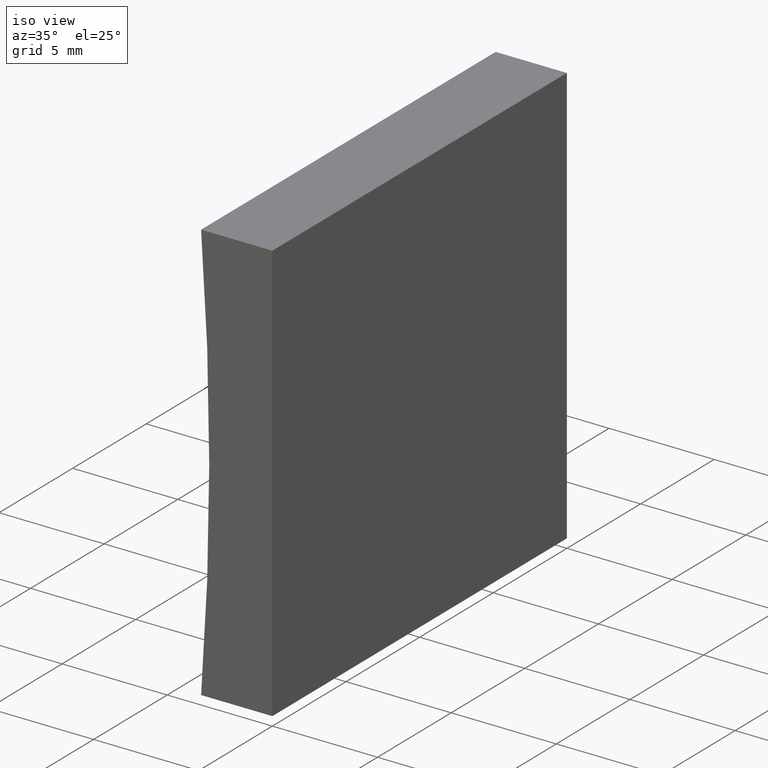
[diagram: clean part render]
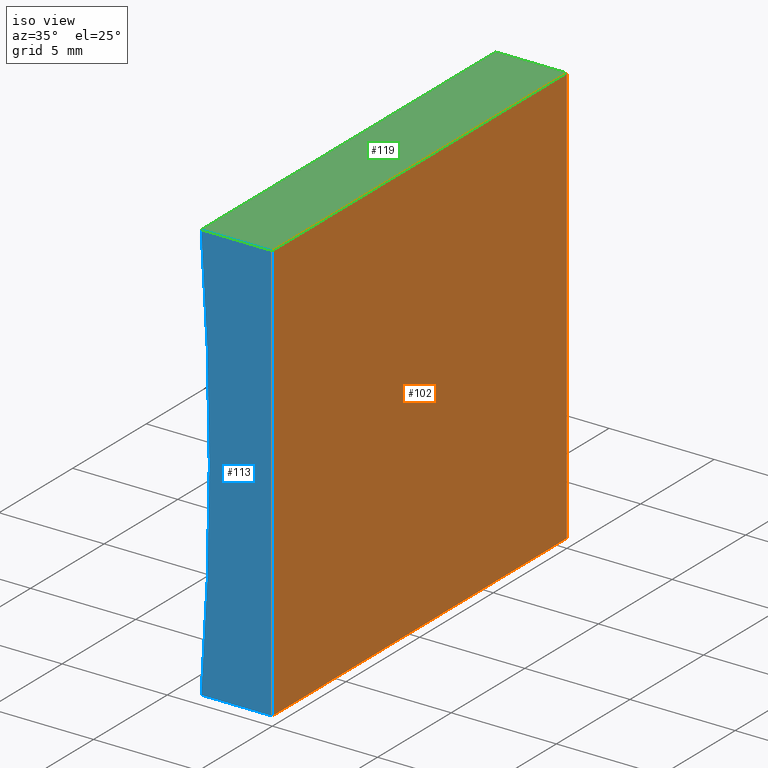
[diagram: same view with three faces highlighted in distinct colors, each labeled with its STEP entity id]
A machine part, iso view with three faces highlighted in distinct colors.
Their STEP definitions:

[orange] entity #102 — the highlighted planar face has unit normal (-1, 0, 0).
#18 = LINE ( 'NONE', #59, #193 ) ;
#23 = LINE ( 'NONE', #48, #42 ) ;
#26 = DIRECTION ( 'NONE',  ( -0.0000000000000000000, -1.000000000000000000, -0.0000000000000000000 ) ) ;
#29 = VERTEX_POINT ( 'NONE', #78 ) ;
#34 = PLANE ( 'NONE',  #106 ) ;
#41 = DIRECTION ( 'NONE',  ( -1.000000000000000000, 0.0000000000000000000, 6.123233995736766000E-017 ) ) ;
#42 = VECTOR ( 'NONE', #180, 1000.000000000000000 ) ;
#48 = CARTESIAN_POINT ( 'NONE',  ( 0.0000000000000000000, 20.00000000000000000, 0.0000000000000000000 ) ) ;
#50 = DIRECTION ( 'NONE',  ( -6.123233995736766000E-017, -0.0000000000000000000, -1.000000000000000000 ) ) ;
#57 = EDGE_CURVE ( 'NONE', #29, #194, #18, .T. ) ;
#59 = CARTESIAN_POINT ( 'NONE',  ( 0.0000000000000000000, 0.0000000000000000000, 0.0000000000000000000 ) ) ;
#65 = CARTESIAN_POINT ( 'NONE',  ( 1.224646799147353300E-015, 20.00000000000000000, 20.00000000000000000 ) ) ;
#66 = ORIENTED_EDGE ( 'NONE', *, *, #57, .T. ) ;
#68 = EDGE_CURVE ( 'NONE', #124, #117, #130, .T. ) ;
#74 = ORIENTED_EDGE ( 'NONE', *, *, #68, .F. ) ;
#75 = VECTOR ( 'NONE', #50, 1000.000000000000000 ) ;
#76 = CARTESIAN_POINT ( 'NONE',  ( 0.0000000000000000000, 20.00000000000000000, 0.0000000000000000000 ) ) ;
#77 = CARTESIAN_POINT ( 'NONE',  ( 0.0000000000000000000, 20.00000000000000000, 0.0000000000000000000 ) ) ;
#78 = CARTESIAN_POINT ( 'NONE',  ( 1.224646799147353300E-015, 0.0000000000000000000, 20.00000000000000000 ) ) ;
#98 = DIRECTION ( 'NONE',  ( -6.123233995736766000E-017, -0.0000000000000000000, -1.000000000000000000 ) ) ;
#102 = ADVANCED_FACE ( 'NONE', ( #138 ), #34, .F. ) ;
#103 = LINE ( 'NONE', #65, #178 ) ;
#106 = AXIS2_PLACEMENT_3D ( 'NONE', #76, #41, #129 ) ;
#117 = VERTEX_POINT ( 'NONE', #171 ) ;
#124 = VERTEX_POINT ( 'NONE', #149 ) ;
#129 = DIRECTION ( 'NONE',  ( 6.123233995736766000E-017, 0.0000000000000000000, 1.000000000000000000 ) ) ;
#130 = LINE ( 'NONE', #77, #75 ) ;
#131 = ORIENTED_EDGE ( 'NONE', *, *, #164, .F. ) ;
#138 = FACE_OUTER_BOUND ( 'NONE', #143, .T. ) ;
#143 = EDGE_LOOP ( 'NONE', ( #66, #131, #74, #177 ) ) ;
#149 = CARTESIAN_POINT ( 'NONE',  ( 1.224646799147353300E-015, 20.00000000000000000, 20.00000000000000000 ) ) ;
#154 = EDGE_CURVE ( 'NONE', #124, #29, #103, .T. ) ;
#164 = EDGE_CURVE ( 'NONE', #117, #194, #23, .T. ) ;
#169 = CARTESIAN_POINT ( 'NONE',  ( 0.0000000000000000000, 0.0000000000000000000, 0.0000000000000000000 ) ) ;
#171 = CARTESIAN_POINT ( 'NONE',  ( 0.0000000000000000000, 20.00000000000000000, 0.0000000000000000000 ) ) ;
#177 = ORIENTED_EDGE ( 'NONE', *, *, #154, .T. ) ;
#178 = VECTOR ( 'NONE', #26, 1000.000000000000000 ) ;
#180 = DIRECTION ( 'NONE',  ( -0.0000000000000000000, -1.000000000000000000, -0.0000000000000000000 ) ) ;
#193 = VECTOR ( 'NONE', #98, 1000.000000000000000 ) ;
#194 = VERTEX_POINT ( 'NONE', #169 ) ;

[blue] entity #113 — the highlighted planar face has unit normal (0, 1, 0).
#3 = CARTESIAN_POINT ( 'NONE',  ( 1.224646799147353300E-015, 0.0000000000000000000, 20.00000000000000000 ) ) ;
#4 = VECTOR ( 'NONE', #200, 1000.000000000000000 ) ;
#6 = AXIS2_PLACEMENT_3D ( 'NONE', #155, #92, #27 ) ;
#18 = LINE ( 'NONE', #59, #193 ) ;
#27 = DIRECTION ( 'NONE',  ( 0.0000000000000000000, 0.0000000000000000000, 1.000000000000000000 ) ) ;
#29 = VERTEX_POINT ( 'NONE', #78 ) ;
#32 = DIRECTION ( 'NONE',  ( 0.0000000000000000000, 1.000000000000000000, 0.0000000000000000000 ) ) ;
#35 = VERTEX_POINT ( 'NONE', #201 ) ;
#45 = ORIENTED_EDGE ( 'NONE', *, *, #89, .F. ) ;
#47 = EDGE_CURVE ( 'NONE', #133, #29, #61, .T. ) ;
#49 = VECTOR ( 'NONE', #187, 1000.000000000000000 ) ;
#57 = EDGE_CURVE ( 'NONE', #29, #194, #18, .T. ) ;
#59 = CARTESIAN_POINT ( 'NONE',  ( 0.0000000000000000000, 0.0000000000000000000, 0.0000000000000000000 ) ) ;
#61 = LINE ( 'NONE', #3, #49 ) ;
#78 = CARTESIAN_POINT ( 'NONE',  ( 1.224646799147353300E-015, 0.0000000000000000000, 20.00000000000000000 ) ) ;
#79 = CIRCLE ( 'NONE', #6, 129.2500000000000000 ) ;
#86 = EDGE_CURVE ( 'NONE', #35, #133, #79, .T. ) ;
#88 = PLANE ( 'NONE',  #190 ) ;
#89 = EDGE_CURVE ( 'NONE', #194, #35, #99, .T. ) ;
#91 = EDGE_LOOP ( 'NONE', ( #45, #184, #204, #100 ) ) ;
#92 = DIRECTION ( 'NONE',  ( -0.0000000000000000000, -1.000000000000000000, -0.0000000000000000000 ) ) ;
#98 = DIRECTION ( 'NONE',  ( -6.123233995736766000E-017, -0.0000000000000000000, -1.000000000000000000 ) ) ;
#99 = LINE ( 'NONE', #189, #4 ) ;
#100 = ORIENTED_EDGE ( 'NONE', *, *, #86, .F. ) ;
#113 = ADVANCED_FACE ( 'NONE', ( #121 ), #88, .F. ) ;
#121 = FACE_OUTER_BOUND ( 'NONE', #91, .T. ) ;
#128 = CARTESIAN_POINT ( 'NONE',  ( -3.387427854322250500, 0.0000000000000000000, 20.00000000000000000 ) ) ;
#133 = VERTEX_POINT ( 'NONE', #128 ) ;
#135 = CARTESIAN_POINT ( 'NONE',  ( -132.2500000000000000, 0.0000000000000000000, 10.00000000000001600 ) ) ;
#155 = CARTESIAN_POINT ( 'NONE',  ( -132.2500000000000000, 0.0000000000000000000, 10.00000000000001600 ) ) ;
#163 = DIRECTION ( 'NONE',  ( 0.0000000000000000000, -0.0000000000000000000, 1.000000000000000000 ) ) ;
#169 = CARTESIAN_POINT ( 'NONE',  ( 0.0000000000000000000, 0.0000000000000000000, 0.0000000000000000000 ) ) ;
#184 = ORIENTED_EDGE ( 'NONE', *, *, #57, .F. ) ;
#187 = DIRECTION ( 'NONE',  ( 1.000000000000000000, -0.0000000000000000000, -0.0000000000000000000 ) ) ;
#189 = CARTESIAN_POINT ( 'NONE',  ( 0.0000000000000000000, 0.0000000000000000000, 0.0000000000000000000 ) ) ;
#190 = AXIS2_PLACEMENT_3D ( 'NONE', #135, #32, #163 ) ;
#193 = VECTOR ( 'NONE', #98, 1000.000000000000000 ) ;
#194 = VERTEX_POINT ( 'NONE', #169 ) ;
#200 = DIRECTION ( 'NONE',  ( -1.000000000000000000, 0.0000000000000000000, 0.0000000000000000000 ) ) ;
#201 = CARTESIAN_POINT ( 'NONE',  ( -3.387427854322250000, 0.0000000000000000000, 1.214306433183765000E-014 ) ) ;
#204 = ORIENTED_EDGE ( 'NONE', *, *, #47, .F. ) ;

[green] entity #119 — the highlighted planar face has unit normal (0, 0, -1).
#3 = CARTESIAN_POINT ( 'NONE',  ( 1.224646799147353300E-015, 0.0000000000000000000, 20.00000000000000000 ) ) ;
#5 = PLANE ( 'NONE',  #186 ) ;
#14 = LINE ( 'NONE', #80, #108 ) ;
#22 = EDGE_CURVE ( 'NONE', #167, #133, #14, .T. ) ;
#25 = EDGE_LOOP ( 'NONE', ( #28, #161, #191, #111 ) ) ;
#26 = DIRECTION ( 'NONE',  ( -0.0000000000000000000, -1.000000000000000000, -0.0000000000000000000 ) ) ;
#28 = ORIENTED_EDGE ( 'NONE', *, *, #47, .T. ) ;
#29 = VERTEX_POINT ( 'NONE', #78 ) ;
#47 = EDGE_CURVE ( 'NONE', #133, #29, #61, .T. ) ;
#49 = VECTOR ( 'NONE', #187, 1000.000000000000000 ) ;
#56 = LINE ( 'NONE', #140, #87 ) ;
#60 = CARTESIAN_POINT ( 'NONE',  ( -3.387427854322250500, 20.00000000000000000, 20.00000000000000000 ) ) ;
#61 = LINE ( 'NONE', #3, #49 ) ;
#65 = CARTESIAN_POINT ( 'NONE',  ( 1.224646799147353300E-015, 20.00000000000000000, 20.00000000000000000 ) ) ;
#72 = EDGE_CURVE ( 'NONE', #167, #124, #56, .T. ) ;
#78 = CARTESIAN_POINT ( 'NONE',  ( 1.224646799147353300E-015, 0.0000000000000000000, 20.00000000000000000 ) ) ;
#80 = CARTESIAN_POINT ( 'NONE',  ( -3.387427854322250500, 20.00000000000000000, 20.00000000000000000 ) ) ;
#87 = VECTOR ( 'NONE', #188, 1000.000000000000000 ) ;
#103 = LINE ( 'NONE', #65, #178 ) ;
#108 = VECTOR ( 'NONE', #132, 1000.000000000000000 ) ;
#111 = ORIENTED_EDGE ( 'NONE', *, *, #22, .T. ) ;
#119 = ADVANCED_FACE ( 'NONE', ( #157 ), #5, .F. ) ;
#124 = VERTEX_POINT ( 'NONE', #149 ) ;
#128 = CARTESIAN_POINT ( 'NONE',  ( -3.387427854322250500, 0.0000000000000000000, 20.00000000000000000 ) ) ;
#133 = VERTEX_POINT ( 'NONE', #128 ) ;
#132 = DIRECTION ( 'NONE',  ( -0.0000000000000000000, -1.000000000000000000, -0.0000000000000000000 ) ) ;
#136 = DIRECTION ( 'NONE',  ( -1.000000000000000000, 0.0000000000000000000, -0.0000000000000000000 ) ) ;
#140 = CARTESIAN_POINT ( 'NONE',  ( 1.224646799147353300E-015, 20.00000000000000000, 20.00000000000000000 ) ) ;
#142 = CARTESIAN_POINT ( 'NONE',  ( 1.224646799147353300E-015, 20.00000000000000000, 20.00000000000000000 ) ) ;
#147 = DIRECTION ( 'NONE',  ( 0.0000000000000000000, 0.0000000000000000000, -1.000000000000000000 ) ) ;
#149 = CARTESIAN_POINT ( 'NONE',  ( 1.224646799147353300E-015, 20.00000000000000000, 20.00000000000000000 ) ) ;
#154 = EDGE_CURVE ( 'NONE', #124, #29, #103, .T. ) ;
#157 = FACE_OUTER_BOUND ( 'NONE', #25, .T. ) ;
#161 = ORIENTED_EDGE ( 'NONE', *, *, #154, .F. ) ;
#167 = VERTEX_POINT ( 'NONE', #60 ) ;
#178 = VECTOR ( 'NONE', #26, 1000.000000000000000 ) ;
#186 = AXIS2_PLACEMENT_3D ( 'NONE', #142, #147, #136 ) ;
#187 = DIRECTION ( 'NONE',  ( 1.000000000000000000, -0.0000000000000000000, -0.0000000000000000000 ) ) ;
#188 = DIRECTION ( 'NONE',  ( 1.000000000000000000, -0.0000000000000000000, -0.0000000000000000000 ) ) ;
#191 = ORIENTED_EDGE ( 'NONE', *, *, #72, .F. ) ;